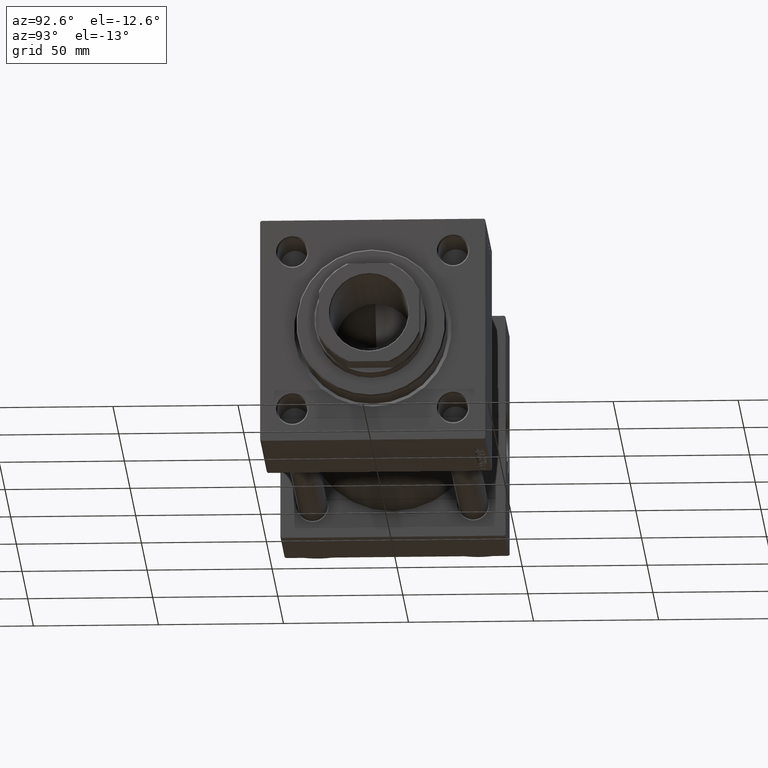
[diagram: clean part render]
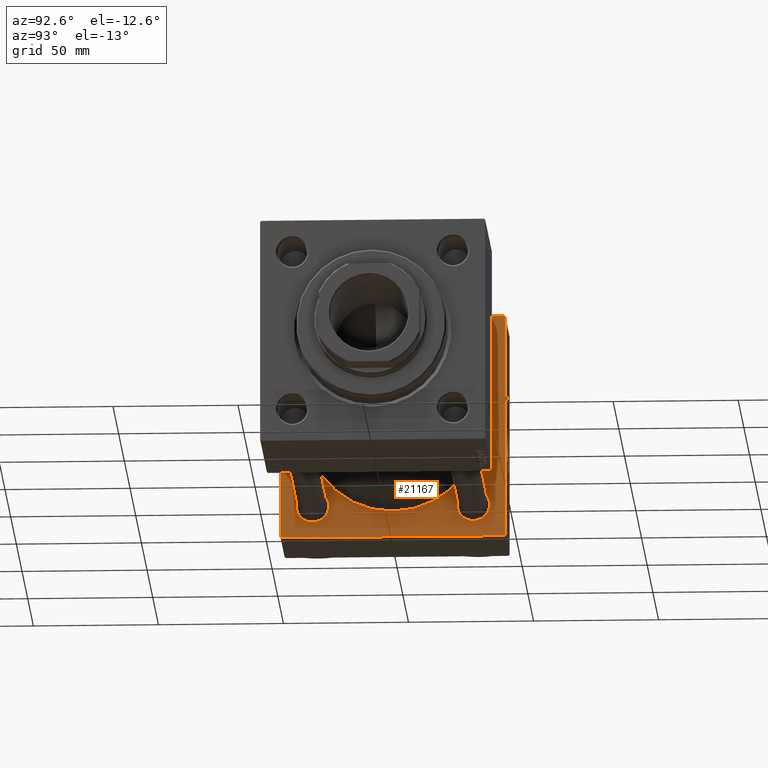
[diagram: same view with one face highlighted and labeled with its STEP entity id]
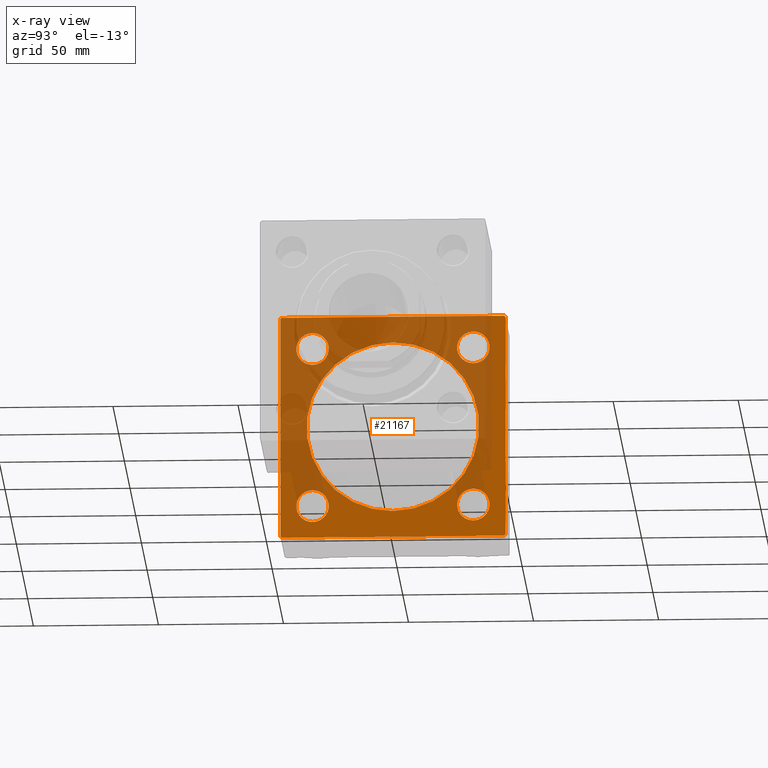
[diagram: x-ray of the same camera — body ghosted, the highlighted face saturated]
A machine part, auxiliary view. The second image highlights one B-rep face of the part: STEP entity #21167.
The next image is the same camera in x-ray: the body ghosted, the highlighted face saturated — about 58% of this face is hidden behind the body in this view.
In plain terms, the highlighted planar face has unit normal (-1, 0, 0).
Its self-contained STEP definition (entity closure, byte-faithful):
#159 = ORIENTED_EDGE ( 'NONE', *, *, #1226, .T. ) ;
#217 = DIRECTION ( 'NONE',  ( 0.000000000000000000, 0.000000000000000000, 1.000000000000000000 ) ) ;
#257 = EDGE_CURVE ( 'NONE', #48503, #48538, #32498, .T. ) ;
#398 = AXIS2_PLACEMENT_3D ( 'NONE', #24666, #36078, #43939 ) ;
#605 = FACE_OUTER_BOUND ( 'NONE', #9985, .T. ) ;
#776 = EDGE_CURVE ( 'NONE', #18653, #42434, #4704, .T. ) ;
#1091 = DIRECTION ( 'NONE',  ( 0.000000000000000000, 0.000000000000000000, 1.000000000000000000 ) ) ;
#1163 = CARTESIAN_POINT ( 'NONE',  ( 37.00000000000000000, 32.14999999999999147, 25.65000000000001990 ) ) ;
#1226 = EDGE_CURVE ( 'NONE', #26727, #14874, #25257, .T. ) ;
#1456 = ORIENTED_EDGE ( 'NONE', *, *, #37066, .T. ) ;
#1951 = EDGE_CURVE ( 'NONE', #40051, #39183, #46320, .T. ) ;
#2043 = CARTESIAN_POINT ( 'NONE',  ( 37.00000000000000000, -32.14999999999997726, -32.15000000000000568 ) ) ;
#2132 = LINE ( 'NONE', #33287, #42590 ) ;
#2196 = EDGE_CURVE ( 'NONE', #5609, #18653, #19290, .T. ) ;
#2461 = ORIENTED_EDGE ( 'NONE', *, *, #1951, .T. ) ;
#2666 = ORIENTED_EDGE ( 'NONE', *, *, #46614, .T. ) ;
#2741 = CARTESIAN_POINT ( 'NONE',  ( 37.00000000000000000, 45.00000000000000000, -44.49999999999999289 ) ) ;
#3303 = CARTESIAN_POINT ( 'NONE',  ( 37.00000000000000000, 45.00000000000000000, -44.99999999999999289 ) ) ;
#3701 = VECTOR ( 'NONE', #49125, 1000.000000000000114 ) ;
#3764 = ORIENTED_EDGE ( 'NONE', *, *, #3992, .F. ) ;
#3893 = CARTESIAN_POINT ( 'NONE',  ( 37.00000000000000000, -45.00000000000000000, 44.99999999999998579 ) ) ;
#3992 = EDGE_CURVE ( 'NONE', #25701, #38788, #49436, .T. ) ;
#4413 = FACE_BOUND ( 'NONE', #10812, .T. ) ;
#4704 = LINE ( 'NONE', #28010, #17170 ) ;
#5428 = LINE ( 'NONE', #32282, #48300 ) ;
#5548 = AXIS2_PLACEMENT_3D ( 'NONE', #2043, #5607, #33448 ) ;
#5607 = DIRECTION ( 'NONE',  ( -1.000000000000000000, 0.000000000000000000, -0.000000000000000000 ) ) ;
#5609 = VERTEX_POINT ( 'NONE', #44487 ) ;
#6539 = DIRECTION ( 'NONE',  ( -0.000000000000000000, -0.7071067811865474617, -0.7071067811865474617 ) ) ;
#6706 = CARTESIAN_POINT ( 'NONE',  ( 37.00000000000000000, 32.14999999999999147, -38.64999999999997726 ) ) ;
#6734 = ORIENTED_EDGE ( 'NONE', *, *, #2196, .T. ) ;
#6876 = AXIS2_PLACEMENT_3D ( 'NONE', #46199, #41644, #11476 ) ;
#7574 = CARTESIAN_POINT ( 'NONE',  ( 37.00000000000000711, -2.602085213965210642E-15, 0.000000000000000000 ) ) ;
#7658 = CARTESIAN_POINT ( 'NONE',  ( 37.00000000000000000, 32.14999999999999147, 38.64999999999997726 ) ) ;
#8209 = CARTESIAN_POINT ( 'NONE',  ( 37.00000000000000000, 0.000000000000000000, 0.000000000000000000 ) ) ;
#8594 = DIRECTION ( 'NONE',  ( 0.000000000000000000, 0.000000000000000000, 1.000000000000000000 ) ) ;
#9133 = CARTESIAN_POINT ( 'NONE',  ( 37.00000000000000000, -44.49999999999997158, 44.99999999999998579 ) ) ;
#9313 = CIRCLE ( 'NONE', #6876, 6.499999999999977796 ) ;
#9436 = EDGE_CURVE ( 'NONE', #14874, #26727, #33604, .T. ) ;
#9524 = VERTEX_POINT ( 'NONE', #13651 ) ;
#9985 = EDGE_LOOP ( 'NONE', ( #3764, #12321, #46922, #6734, #26156, #13304, #13871, #12088 ) ) ;
#10386 = CIRCLE ( 'NONE', #5548, 6.500000000000005329 ) ;
#10812 = EDGE_LOOP ( 'NONE', ( #2461, #36011 ) ) ;
#10979 = CARTESIAN_POINT ( 'NONE',  ( 37.00000000000000711, -2.602085213965210642E-15, 0.000000000000000000 ) ) ;
#11476 = DIRECTION ( 'NONE',  ( 0.000000000000000000, 0.000000000000000000, 1.000000000000000000 ) ) ;
#11486 = CARTESIAN_POINT ( 'NONE',  ( 37.00000000000000000, 45.00000000000000000, -44.49999999999996447 ) ) ;
#11629 = ORIENTED_EDGE ( 'NONE', *, *, #257, .T. ) ;
#12041 = CARTESIAN_POINT ( 'NONE',  ( 37.00000000000000000, 44.49999999999997158, 45.00000000000000711 ) ) ;
#12088 = ORIENTED_EDGE ( 'NONE', *, *, #17114, .T. ) ;
#12275 = AXIS2_PLACEMENT_3D ( 'NONE', #32461, #40074, #47182 ) ;
#12321 = ORIENTED_EDGE ( 'NONE', *, *, #45921, .T. ) ;
#12531 = FACE_BOUND ( 'NONE', #30549, .T. ) ;
#12778 = DIRECTION ( 'NONE',  ( -1.000000000000000000, 0.000000000000000000, -0.000000000000000000 ) ) ;
#12915 = CARTESIAN_POINT ( 'NONE',  ( 37.00000000000000000, 32.14999999999999147, -32.14999999999999858 ) ) ;
#13154 = EDGE_CURVE ( 'NONE', #39183, #40051, #9313, .T. ) ;
#13304 = ORIENTED_EDGE ( 'NONE', *, *, #21516, .T. ) ;
#13651 = CARTESIAN_POINT ( 'NONE',  ( 37.00000000000000711, 1.622946243093158675E-15, -34.50000000000000000 ) ) ;
#13788 = AXIS2_PLACEMENT_3D ( 'NONE', #7574, #30874, #217 ) ;
#13871 = ORIENTED_EDGE ( 'NONE', *, *, #44200, .T. ) ;
#14220 = CARTESIAN_POINT ( 'NONE',  ( 37.00000000000000000, 32.14999999999999147, -25.65000000000001990 ) ) ;
#14874 = VERTEX_POINT ( 'NONE', #14220 ) ;
#15111 = VERTEX_POINT ( 'NONE', #25555 ) ;
#15118 = CARTESIAN_POINT ( 'NONE',  ( 37.00000000000000000, 44.50000000000000000, -44.99999999999999289 ) ) ;
#15496 = CARTESIAN_POINT ( 'NONE',  ( 37.00000000000000000, 44.49999999999997158, 45.00000000000000711 ) ) ;
#15700 = DIRECTION ( 'NONE',  ( -1.000000000000000000, 0.000000000000000000, -0.000000000000000000 ) ) ;
#15737 = CARTESIAN_POINT ( 'NONE',  ( 37.00000000000000000, -32.14999999999997726, -25.64999999999999858 ) ) ;
#15923 = CARTESIAN_POINT ( 'NONE',  ( 37.00000000000000000, -32.14999999999997726, -38.65000000000001279 ) ) ;
#15949 = EDGE_CURVE ( 'NONE', #16284, #9524, #23979, .T. ) ;
#16284 = VERTEX_POINT ( 'NONE', #23056 ) ;
#16588 = FACE_BOUND ( 'NONE', #29060, .T. ) ;
#16680 = CIRCLE ( 'NONE', #44992, 6.500000000000012434 ) ;
#17114 = EDGE_CURVE ( 'NONE', #26731, #38788, #5428, .T. ) ;
#17170 = VECTOR ( 'NONE', #42452, 1000.000000000000000 ) ;
#18337 = AXIS2_PLACEMENT_3D ( 'NONE', #10979, #26432, #33283 ) ;
#18653 = VERTEX_POINT ( 'NONE', #12041 ) ;
#18753 = DIRECTION ( 'NONE',  ( 0.000000000000000000, -1.000000000000000000, -7.709882115452476934E-17 ) ) ;
#19035 = VECTOR ( 'NONE', #38348, 1000.000000000000000 ) ;
#19038 = DIRECTION ( 'NONE',  ( 0.000000000000000000, -0.7071067811865574537, 0.7071067811865376918 ) ) ;
#19290 = LINE ( 'NONE', #15496, #22850 ) ;
#19849 = ORIENTED_EDGE ( 'NONE', *, *, #45248, .T. ) ;
#20871 = CARTESIAN_POINT ( 'NONE',  ( 37.00000000000000000, 32.14999999999999147, 32.14999999999999858 ) ) ;
#21096 = DIRECTION ( 'NONE',  ( -1.000000000000000000, 0.000000000000000000, -0.000000000000000000 ) ) ;
#21167 = ADVANCED_FACE ( 'NONE', ( #12531, #35581, #16588, #4413, #47254, #605 ), #23915, .F. ) ;
#21376 = DIRECTION ( 'NONE',  ( -1.000000000000000000, 0.000000000000000000, -0.000000000000000000 ) ) ;
#21516 = EDGE_CURVE ( 'NONE', #42434, #15111, #44831, .T. ) ;
#21869 = DIRECTION ( 'NONE',  ( 0.000000000000000000, 0.000000000000000000, 1.000000000000000000 ) ) ;
#22127 = EDGE_LOOP ( 'NONE', ( #159, #32715 ) ) ;
#22527 = VECTOR ( 'NONE', #6539, 1000.000000000000114 ) ;
#22850 = VECTOR ( 'NONE', #19038, 999.9999999999998863 ) ;
#23056 = CARTESIAN_POINT ( 'NONE',  ( 37.00000000000000711, -2.602085213965210642E-15, 34.50000000000000000 ) ) ;
#23915 = PLANE ( 'NONE',  #42760 ) ;
#23979 = CIRCLE ( 'NONE', #18337, 34.50000000000000000 ) ;
#24666 = CARTESIAN_POINT ( 'NONE',  ( 37.00000000000000000, -32.14999999999997726, -32.15000000000000568 ) ) ;
#25257 = CIRCLE ( 'NONE', #41418, 6.499999999999977796 ) ;
#25555 = CARTESIAN_POINT ( 'NONE',  ( 37.00000000000000000, -45.00000000000000000, 44.49999999999998579 ) ) ;
#25701 = VERTEX_POINT ( 'NONE', #15118 ) ;
#25887 = CIRCLE ( 'NONE', #13788, 34.50000000000000000 ) ;
#26156 = ORIENTED_EDGE ( 'NONE', *, *, #776, .T. ) ;
#26432 = DIRECTION ( 'NONE',  ( 1.000000000000000000, -0.000000000000000000, 0.000000000000000000 ) ) ;
#26519 = EDGE_CURVE ( 'NONE', #9524, #16284, #25887, .T. ) ;
#26727 = VERTEX_POINT ( 'NONE', #6706 ) ;
#26731 = VERTEX_POINT ( 'NONE', #46227 ) ;
#27387 = ORIENTED_EDGE ( 'NONE', *, *, #26519, .F. ) ;
#27935 = AXIS2_PLACEMENT_3D ( 'NONE', #12915, #15700, #8594 ) ;
#27976 = DIRECTION ( 'NONE',  ( -1.000000000000000000, 0.000000000000000000, -0.000000000000000000 ) ) ;
#28010 = CARTESIAN_POINT ( 'NONE',  ( 37.00000000000000000, 45.00000000000000000, 45.00000000000000711 ) ) ;
#28072 = CARTESIAN_POINT ( 'NONE',  ( 37.00000000000000000, -32.14999999999997726, 25.64999999999999147 ) ) ;
#28217 = DIRECTION ( 'NONE',  ( 0.000000000000000000, 0.000000000000000000, 1.000000000000000000 ) ) ;
#28410 = VERTEX_POINT ( 'NONE', #15737 ) ;
#28981 = CARTESIAN_POINT ( 'NONE',  ( 37.00000000000000000, -32.14999999999997726, 32.15000000000000568 ) ) ;
#29060 = EDGE_LOOP ( 'NONE', ( #2666, #11629 ) ) ;
#29729 = DIRECTION ( 'NONE',  ( 0.000000000000000000, 0.000000000000000000, -1.000000000000000000 ) ) ;
#30549 = EDGE_LOOP ( 'NONE', ( #19849, #1456 ) ) ;
#30874 = DIRECTION ( 'NONE',  ( 1.000000000000000000, -0.000000000000000000, 0.000000000000000000 ) ) ;
#32282 = CARTESIAN_POINT ( 'NONE',  ( 37.00000000000000000, -44.49999999999997158, -45.00000000000000000 ) ) ;
#32461 = CARTESIAN_POINT ( 'NONE',  ( 37.00000000000000000, -32.14999999999997726, 32.15000000000000568 ) ) ;
#32498 = CIRCLE ( 'NONE', #12275, 6.500000000000012434 ) ;
#32715 = ORIENTED_EDGE ( 'NONE', *, *, #9436, .T. ) ;
#33006 = CARTESIAN_POINT ( 'NONE',  ( 37.00000000000000000, 32.14999999999999147, -32.14999999999999858 ) ) ;
#33283 = DIRECTION ( 'NONE',  ( 0.000000000000000000, 0.000000000000000000, 1.000000000000000000 ) ) ;
#33287 = CARTESIAN_POINT ( 'NONE',  ( 37.00000000000000000, 45.00000000000000000, 45.00000000000000711 ) ) ;
#33448 = DIRECTION ( 'NONE',  ( 0.000000000000000000, 0.000000000000000000, 1.000000000000000000 ) ) ;
#33604 = CIRCLE ( 'NONE', #27935, 6.499999999999977796 ) ;
#35325 = DIRECTION ( 'NONE',  ( -0.000000000000000000, 0.000000000000000000, 1.000000000000000000 ) ) ;
#35581 = FACE_BOUND ( 'NONE', #22127, .T. ) ;
#36011 = ORIENTED_EDGE ( 'NONE', *, *, #13154, .T. ) ;
#36078 = DIRECTION ( 'NONE',  ( -1.000000000000000000, 0.000000000000000000, -0.000000000000000000 ) ) ;
#37066 = EDGE_CURVE ( 'NONE', #28410, #42601, #10386, .T. ) ;
#37636 = CIRCLE ( 'NONE', #398, 6.500000000000005329 ) ;
#38348 = DIRECTION ( 'NONE',  ( 0.000000000000000000, 0.000000000000000000, -1.000000000000000000 ) ) ;
#38788 = VERTEX_POINT ( 'NONE', #39649 ) ;
#39183 = VERTEX_POINT ( 'NONE', #7658 ) ;
#39649 = CARTESIAN_POINT ( 'NONE',  ( 37.00000000000000000, -44.49999999999994316, -45.00000000000000000 ) ) ;
#40051 = VERTEX_POINT ( 'NONE', #1163 ) ;
#40074 = DIRECTION ( 'NONE',  ( -1.000000000000000000, 0.000000000000000000, -0.000000000000000000 ) ) ;
#41418 = AXIS2_PLACEMENT_3D ( 'NONE', #33006, #21096, #1091 ) ;
#41495 = VECTOR ( 'NONE', #18753, 1000.000000000000000 ) ;
#41644 = DIRECTION ( 'NONE',  ( -1.000000000000000000, 0.000000000000000000, -0.000000000000000000 ) ) ;
#42434 = VERTEX_POINT ( 'NONE', #9133 ) ;
#42452 = DIRECTION ( 'NONE',  ( 0.000000000000000000, -1.000000000000000000, -2.312964634635742957E-16 ) ) ;
#42537 = EDGE_LOOP ( 'NONE', ( #46001, #27387 ) ) ;
#42590 = VECTOR ( 'NONE', #29729, 1000.000000000000000 ) ;
#42601 = VERTEX_POINT ( 'NONE', #15923 ) ;
#42760 = AXIS2_PLACEMENT_3D ( 'NONE', #8209, #27976, #35325 ) ;
#42913 = LINE ( 'NONE', #3893, #19035 ) ;
#43367 = VERTEX_POINT ( 'NONE', #11486 ) ;
#43939 = DIRECTION ( 'NONE',  ( 0.000000000000000000, 0.000000000000000000, 1.000000000000000000 ) ) ;
#44200 = EDGE_CURVE ( 'NONE', #15111, #26731, #42913, .T. ) ;
#44487 = CARTESIAN_POINT ( 'NONE',  ( 37.00000000000000000, 45.00000000000000000, 44.49999999999999289 ) ) ;
#44831 = LINE ( 'NONE', #48616, #22527 ) ;
#44992 = AXIS2_PLACEMENT_3D ( 'NONE', #28981, #21376, #21869 ) ;
#45248 = EDGE_CURVE ( 'NONE', #42601, #28410, #37636, .T. ) ;
#45342 = CARTESIAN_POINT ( 'NONE',  ( 37.00000000000000000, -32.14999999999997726, 38.65000000000001990 ) ) ;
#45921 = EDGE_CURVE ( 'NONE', #25701, #43367, #48379, .T. ) ;
#46001 = ORIENTED_EDGE ( 'NONE', *, *, #15949, .F. ) ;
#46199 = CARTESIAN_POINT ( 'NONE',  ( 37.00000000000000000, 32.14999999999999147, 32.14999999999999858 ) ) ;
#46227 = CARTESIAN_POINT ( 'NONE',  ( 37.00000000000000000, -45.00000000000000000, -44.49999999999997158 ) ) ;
#46320 = CIRCLE ( 'NONE', #48771, 6.499999999999977796 ) ;
#46614 = EDGE_CURVE ( 'NONE', #48538, #48503, #16680, .T. ) ;
#46922 = ORIENTED_EDGE ( 'NONE', *, *, #47786, .F. ) ;
#47182 = DIRECTION ( 'NONE',  ( 0.000000000000000000, 0.000000000000000000, 1.000000000000000000 ) ) ;
#47254 = FACE_BOUND ( 'NONE', #42537, .T. ) ;
#47749 = DIRECTION ( 'NONE',  ( 0.000000000000000000, 0.7071067811865672237, -0.7071067811865279218 ) ) ;
#47786 = EDGE_CURVE ( 'NONE', #5609, #43367, #2132, .T. ) ;
#48300 = VECTOR ( 'NONE', #47749, 1000.000000000000000 ) ;
#48379 = LINE ( 'NONE', #2741, #3701 ) ;
#48503 = VERTEX_POINT ( 'NONE', #45342 ) ;
#48538 = VERTEX_POINT ( 'NONE', #28072 ) ;
#48616 = CARTESIAN_POINT ( 'NONE',  ( 37.00000000000000000, -45.00000000000000000, 44.49999999999998579 ) ) ;
#48771 = AXIS2_PLACEMENT_3D ( 'NONE', #20871, #12778, #28217 ) ;
#49125 = DIRECTION ( 'NONE',  ( -0.000000000000000000, 0.7071067811865474617, 0.7071067811865474617 ) ) ;
#49436 = LINE ( 'NONE', #3303, #41495 ) ;